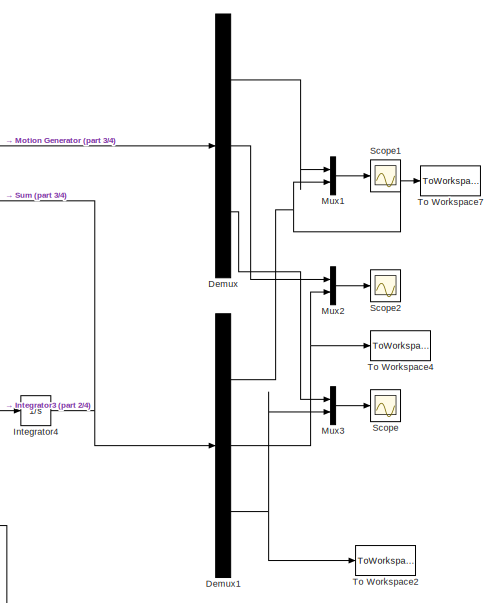
[diagram: root canvas - part 1/4, top right region]
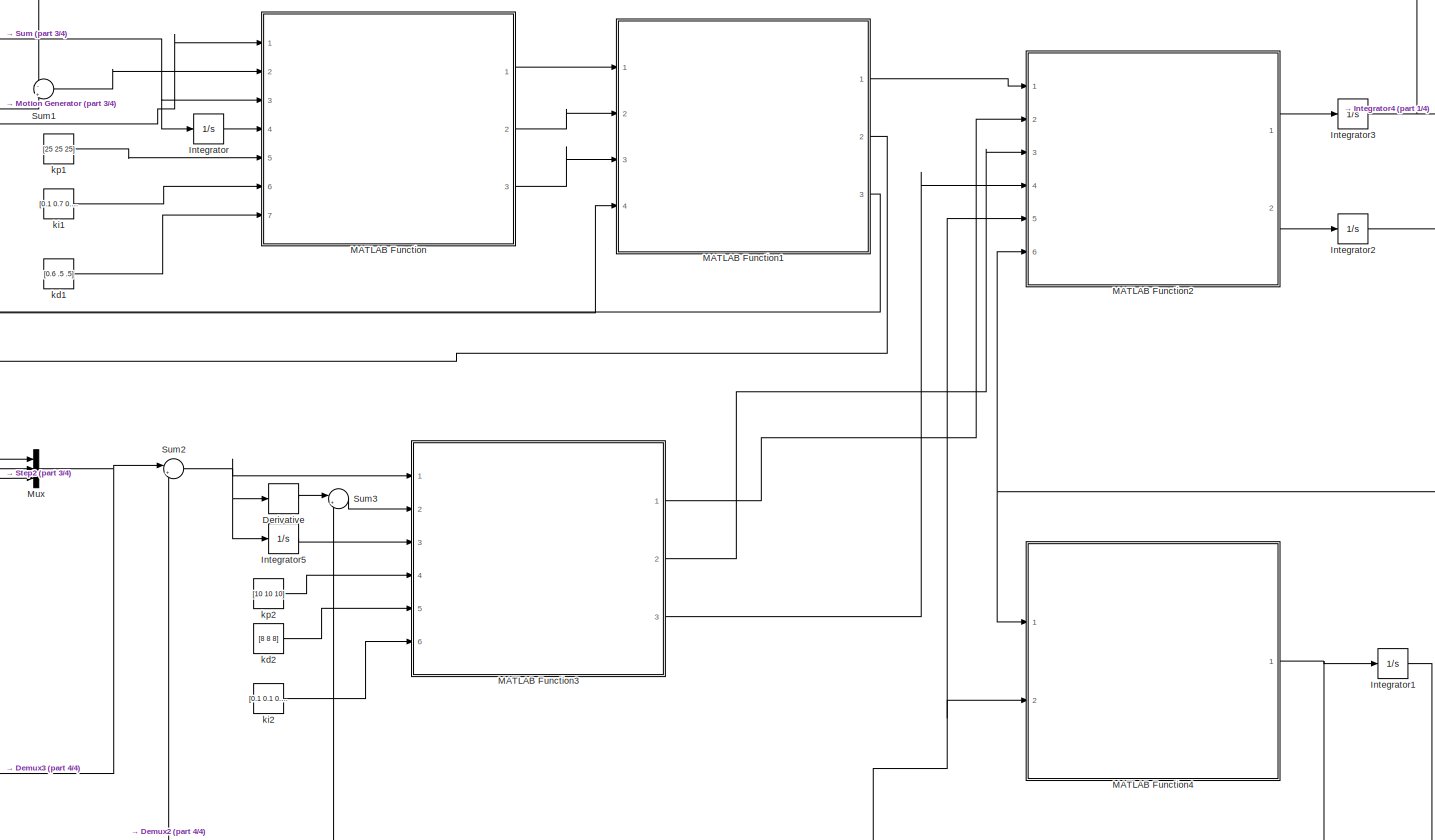
[diagram: root canvas - part 2/4, central region]
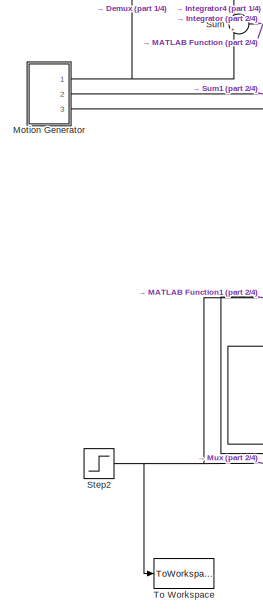
[diagram: root canvas - part 3/4, middle left region]
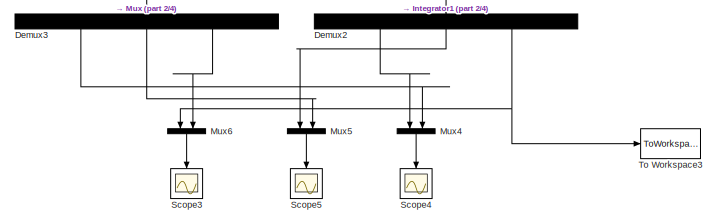
[diagram: root canvas - part 4/4, bottom left region]
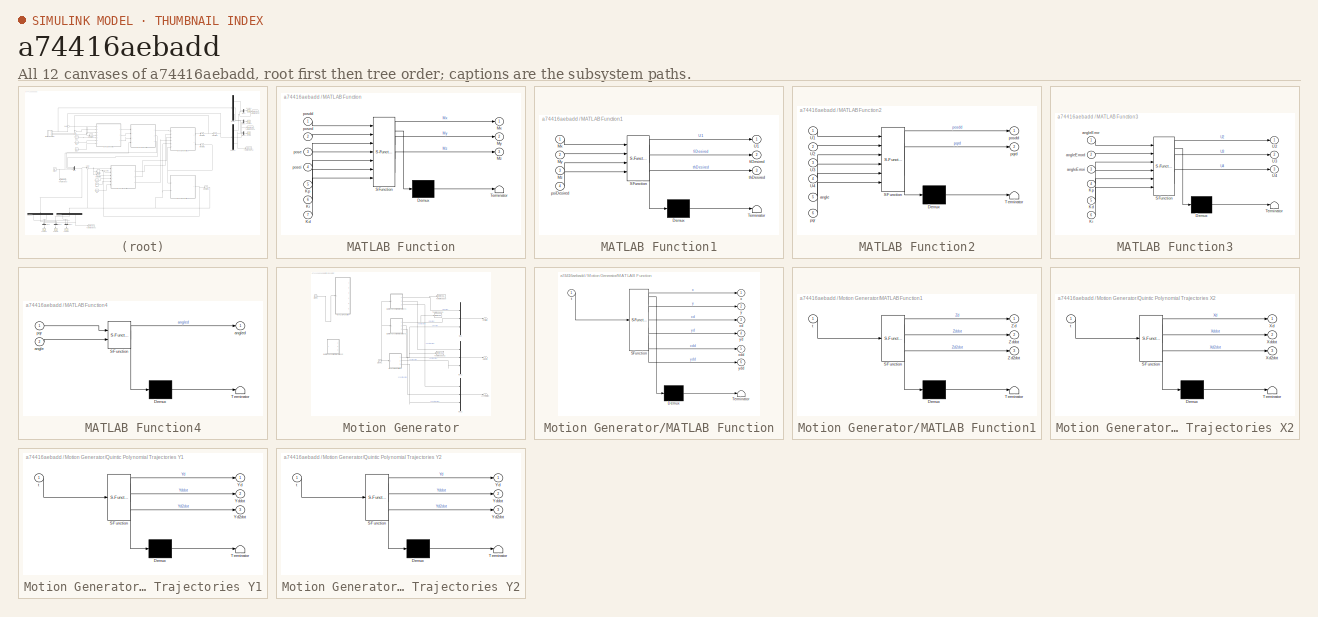
[diagram: thumbnail index - all 12 canvases of the model, root first then tree order]
MODEL slx_a74416aebadd
KIND model
CONFIG AbsTol = auto
CONFIG EnableMultiTasking = off
CONFIG FixedStep = auto
CONFIG MaxStep = auto
CONFIG MinStep = auto
CONFIG RelTol = 1e-3
CONFIG SampleTimeConstraint = Unconstrained
CONFIG SolverName = FixedStepAuto
CONFIG StartTime = 0.0
CONFIG StopTime = 10
BLOCK [Demux] Demux
  Outputs = 3
  Ports = [1, 3]
BLOCK [Demux] Demux1
  Outputs = 3
  Ports = [1, 3]
BLOCK [Demux] Demux2
  NameLocation = left
  Outputs = 3
  Ports = [1, 3]
BLOCK [Demux] Demux3
  NameLocation = left
  Outputs = 3
  Ports = [1, 3]
BLOCK [Derivative] Derivative
BLOCK [Integrator] Integrator
  Ports = [1, 1]
BLOCK [Integrator] Integrator1
  Ports = [1, 1]
BLOCK [Integrator] Integrator2
  Ports = [1, 1]
BLOCK [Integrator] Integrator3
  Ports = [1, 1]
BLOCK [Integrator] Integrator4
  Ports = [1, 1]
BLOCK [Integrator] Integrator5
  Ports = [1, 1]
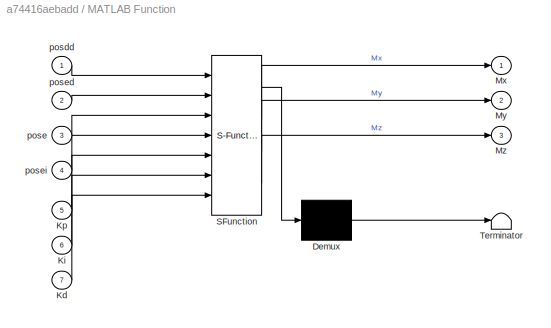
BLOCK [SubSystem] MATLAB Function
  ErrorFcn = Stateflow.Translate.translate
  PermitHierarchicalResolution = ExplicitOnly
  Ports = [7, 3]
  RequestExecContextInheritance = off
  SFBlockType = MATLAB Function
  TreatAsAtomicUnit = on
BLOCK [Demux] MATLAB Function/ Demux 
  Outputs = 1
  Ports = [1, 1]
BLOCK [S-Function] MATLAB Function/ SFunction 
  EnableBusSupport = on
  FunctionName = sf_sfun
  PortCounts = [7 4]
  Ports = [7, 4]
  SFcnIsStateOwnerBlock = off
  SFunctionDeploymentMode = off
  Tag = Stateflow S-Function 2
BLOCK [Terminator] MATLAB Function/ Terminator 
BLOCK [Inport] MATLAB Function/Kd
  Port = 7
BLOCK [Inport] MATLAB Function/Ki
  Port = 6
BLOCK [Inport] MATLAB Function/Kp
  Port = 5
BLOCK [Outport] MATLAB Function/Mx
  VectorParamsAs1DForOutWhenUnconnected = off
BLOCK [Outport] MATLAB Function/My
  Port = 2
  VectorParamsAs1DForOutWhenUnconnected = off
BLOCK [Outport] MATLAB Function/Mz
  Port = 3
  VectorParamsAs1DForOutWhenUnconnected = off
BLOCK [Inport] MATLAB Function/posdd
BLOCK [Inport] MATLAB Function/pose
  Port = 3
BLOCK [Inport] MATLAB Function/posed
  Port = 2
BLOCK [Inport] MATLAB Function/posei
  Port = 4
BLOCK [SubSystem] MATLAB Function1
  ErrorFcn = Stateflow.Translate.translate
  PermitHierarchicalResolution = ExplicitOnly
  Ports = [4, 3]
  RequestExecContextInheritance = off
  SFBlockType = MATLAB Function
  TreatAsAtomicUnit = on
BLOCK [Demux] MATLAB Function1/ Demux 
  Outputs = 1
  Ports = [1, 1]
BLOCK [S-Function] MATLAB Function1/ SFunction 
  EnableBusSupport = on
  FunctionName = sf_sfun
  PortCounts = [4 4]
  Ports = [4, 4]
  SFcnIsStateOwnerBlock = off
  SFunctionDeploymentMode = off
  Tag = Stateflow S-Function 3
BLOCK [Terminator] MATLAB Function1/ Terminator 
BLOCK [Inport] MATLAB Function1/Mx
BLOCK [Inport] MATLAB Function1/My
  Port = 2
BLOCK [Inport] MATLAB Function1/Mz
  Port = 3
BLOCK [Outport] MATLAB Function1/U1
  VectorParamsAs1DForOutWhenUnconnected = off
BLOCK [Outport] MATLAB Function1/fiDesired
  Port = 2
  VectorParamsAs1DForOutWhenUnconnected = off
BLOCK [Inport] MATLAB Function1/psiDesired
  Port = 4
BLOCK [Outport] MATLAB Function1/thDesired
  Port = 3
  VectorParamsAs1DForOutWhenUnconnected = off
BLOCK [SubSystem] MATLAB Function2
  ErrorFcn = Stateflow.Translate.translate
  PermitHierarchicalResolution = ExplicitOnly
  Ports = [6, 2]
  RequestExecContextInheritance = off
  SFBlockType = MATLAB Function
  TreatAsAtomicUnit = on
BLOCK [Demux] MATLAB Function2/ Demux 
  Outputs = 1
  Ports = [1, 1]
BLOCK [S-Function] MATLAB Function2/ SFunction 
  EnableBusSupport = on
  FunctionName = sf_sfun
  PortCounts = [6 3]
  Ports = [6, 3]
  SFcnIsStateOwnerBlock = off
  SFunctionDeploymentMode = off
  Tag = Stateflow S-Function 4
BLOCK [Terminator] MATLAB Function2/ Terminator 
BLOCK [Inport] MATLAB Function2/U1
BLOCK [Inport] MATLAB Function2/U2
  Port = 2
BLOCK [Inport] MATLAB Function2/U3
  Port = 3
BLOCK [Inport] MATLAB Function2/U4
  Port = 4
BLOCK [Inport] MATLAB Function2/angle
  Port = 5
BLOCK [Outport] MATLAB Function2/posdd
  VectorParamsAs1DForOutWhenUnconnected = off
BLOCK [Inport] MATLAB Function2/pqr
  Port = 6
BLOCK [Outport] MATLAB Function2/pqrd
  Port = 2
  VectorParamsAs1DForOutWhenUnconnected = off
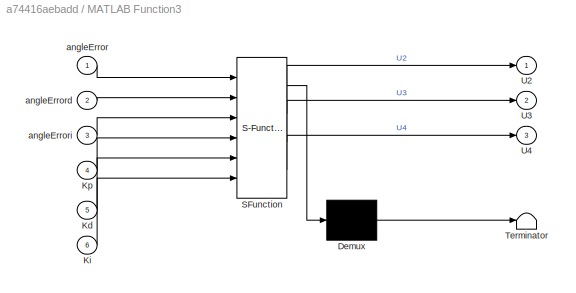
BLOCK [SubSystem] MATLAB Function3
  ErrorFcn = Stateflow.Translate.translate
  PermitHierarchicalResolution = ExplicitOnly
  Ports = [6, 3]
  RequestExecContextInheritance = off
  SFBlockType = MATLAB Function
  TreatAsAtomicUnit = on
BLOCK [Demux] MATLAB Function3/ Demux 
  Outputs = 1
  Ports = [1, 1]
BLOCK [S-Function] MATLAB Function3/ SFunction 
  EnableBusSupport = on
  FunctionName = sf_sfun
  PortCounts = [6 4]
  Ports = [6, 4]
  SFcnIsStateOwnerBlock = off
  SFunctionDeploymentMode = off
  Tag = Stateflow S-Function 5
BLOCK [Terminator] MATLAB Function3/ Terminator 
BLOCK [Inport] MATLAB Function3/Kd
  Port = 5
BLOCK [Inport] MATLAB Function3/Ki
  Port = 6
BLOCK [Inport] MATLAB Function3/Kp
  Port = 4
BLOCK [Outport] MATLAB Function3/U2
  VectorParamsAs1DForOutWhenUnconnected = off
BLOCK [Outport] MATLAB Function3/U3
  Port = 2
  VectorParamsAs1DForOutWhenUnconnected = off
BLOCK [Outport] MATLAB Function3/U4
  Port = 3
  VectorParamsAs1DForOutWhenUnconnected = off
BLOCK [Inport] MATLAB Function3/angleError
BLOCK [Inport] MATLAB Function3/angleErrord
  Port = 2
BLOCK [Inport] MATLAB Function3/angleErrori
  Port = 3
BLOCK [SubSystem] MATLAB Function4
  ErrorFcn = Stateflow.Translate.translate
  PermitHierarchicalResolution = ExplicitOnly
  Ports = [2, 1]
  RequestExecContextInheritance = off
  SFBlockType = MATLAB Function
  TreatAsAtomicUnit = on
BLOCK [Demux] MATLAB Function4/ Demux 
  Outputs = 1
  Ports = [1, 1]
BLOCK [S-Function] MATLAB Function4/ SFunction 
  EnableBusSupport = on
  FunctionName = sf_sfun
  PortCounts = [2 2]
  Ports = [2, 2]
  SFcnIsStateOwnerBlock = off
  SFunctionDeploymentMode = off
  Tag = Stateflow S-Function 6
BLOCK [Terminator] MATLAB Function4/ Terminator 
BLOCK [Inport] MATLAB Function4/angle
  Port = 2
BLOCK [Outport] MATLAB Function4/angled
  VectorParamsAs1DForOutWhenUnconnected = off
BLOCK [Inport] MATLAB Function4/pqr
BLOCK [SubSystem] Motion Generator
  Ports = [0, 3]
  RequestExecContextInheritance = off
BLOCK [Outport] Motion Generator/Acceleration
  Port = 3
  VectorParamsAs1DForOutWhenUnconnected = off
BLOCK [Clock] Motion Generator/Clock
BLOCK [Clock] Motion Generator/Clock1
BLOCK [SubSystem] Motion Generator/MATLAB Function
  Commented = on
  ErrorFcn = Stateflow.Translate.translate
  PermitHierarchicalResolution = ExplicitOnly
  Ports = [1, 6]
  RequestExecContextInheritance = off
  SFBlockType = MATLAB Function
  TreatAsAtomicUnit = on
BLOCK [Demux] Motion Generator/MATLAB Function/ Demux 
  Outputs = 1
  Ports = [1, 1]
BLOCK [S-Function] Motion Generator/MATLAB Function/ SFunction 
  EnableBusSupport = on
  FunctionName = sf_sfun
  PortCounts = [1 7]
  Ports = [1, 7]
  SFcnIsStateOwnerBlock = off
  SFunctionDeploymentMode = off
  Tag = Stateflow S-Function 1
BLOCK [Terminator] Motion Generator/MATLAB Function/ Terminator 
BLOCK [Inport] Motion Generator/MATLAB Function/t
BLOCK [Outport] Motion Generator/MATLAB Function/x
  VectorParamsAs1DForOutWhenUnconnected = off
BLOCK [Outport] Motion Generator/MATLAB Function/xd
  Port = 3
  VectorParamsAs1DForOutWhenUnconnected = off
BLOCK [Outport] Motion Generator/MATLAB Function/xdd
  Port = 5
  VectorParamsAs1DForOutWhenUnconnected = off
BLOCK [Outport] Motion Generator/MATLAB Function/y
  Port = 2
  VectorParamsAs1DForOutWhenUnconnected = off
BLOCK [Outport] Motion Generator/MATLAB Function/yd
  Port = 4
  VectorParamsAs1DForOutWhenUnconnected = off
BLOCK [Outport] Motion Generator/MATLAB Function/ydd
  Port = 6
  VectorParamsAs1DForOutWhenUnconnected = off
BLOCK [SubSystem] Motion Generator/MATLAB Function1
  ErrorFcn = Stateflow.Translate.translate
  PermitHierarchicalResolution = ExplicitOnly
  Ports = [1, 3]
  RequestExecContextInheritance = off
  SFBlockType = MATLAB Function
  TreatAsAtomicUnit = on
BLOCK [Demux] Motion Generator/MATLAB Function1/ Demux 
  Outputs = 1
  Ports = [1, 1]
BLOCK [S-Function] Motion Generator/MATLAB Function1/ SFunction 
  EnableBusSupport = on
  FunctionName = sf_sfun
  PortCounts = [1 4]
  Ports = [1, 4]
  SFcnIsStateOwnerBlock = off
  SFunctionDeploymentMode = off
  Tag = Stateflow S-Function 7
BLOCK [Terminator] Motion Generator/MATLAB Function1/ Terminator 
BLOCK [Outport] Motion Generator/MATLAB Function1/Zd
  VectorParamsAs1DForOutWhenUnconnected = off
BLOCK [Outport] Motion Generator/MATLAB Function1/Zd2dot
  Port = 3
  VectorParamsAs1DForOutWhenUnconnected = off
BLOCK [Outport] Motion Generator/MATLAB Function1/Zddot
  Port = 2
  VectorParamsAs1DForOutWhenUnconnected = off
BLOCK [Inport] Motion Generator/MATLAB Function1/t
BLOCK [Mux] Motion Generator/Mux
  DisplayOption = bar
  Inputs = 3
  Ports = [3, 1]
BLOCK [Mux] Motion Generator/Mux1
  DisplayOption = bar
  Inputs = 3
  Ports = [3, 1]
BLOCK [Mux] Motion Generator/Mux2
  DisplayOption = bar
  Inputs = 3
  Ports = [3, 1]
BLOCK [Outport] Motion Generator/Position
  VectorParamsAs1DForOutWhenUnconnected = off
BLOCK [SubSystem] Motion Generator/Quintic Polynomial Trajectories X2
  Commented = on
  ErrorFcn = Stateflow.Translate.translate
  PermitHierarchicalResolution = ExplicitOnly
  Ports = [1, 3]
  RequestExecContextInheritance = off
  SFBlockType = MATLAB Function
  TreatAsAtomicUnit = on
BLOCK [Demux] Motion Generator/Quintic Polynomial Trajectories X2/ Demux 
  Outputs = 1
  Ports = [1, 1]
BLOCK [S-Function] Motion Generator/Quintic Polynomial Trajectories X2/ SFunction 
  EnableBusSupport = on
  FunctionName = sf_sfun
  PortCounts = [1 4]
  Ports = [1, 4]
  SFcnIsStateOwnerBlock = off
  SFunctionDeploymentMode = off
  Tag = Stateflow S-Function 10
BLOCK [Terminator] Motion Generator/Quintic Polynomial Trajectories X2/ Terminator 
BLOCK [Outport] Motion Generator/Quintic Polynomial Trajectories X2/Xd
  VectorParamsAs1DForOutWhenUnconnected = off
BLOCK [Outport] Motion Generator/Quintic Polynomial Trajectories X2/Xd2dot
  Port = 3
  VectorParamsAs1DForOutWhenUnconnected = off
BLOCK [Outport] Motion Generator/Quintic Polynomial Trajectories X2/Xddot
  Port = 2
  VectorParamsAs1DForOutWhenUnconnected = off
BLOCK [Inport] Motion Generator/Quintic Polynomial Trajectories X2/t
BLOCK [SubSystem] Motion Generator/Quintic Polynomial Trajectories Y1
  ErrorFcn = Stateflow.Translate.translate
  PermitHierarchicalResolution = ExplicitOnly
  Ports = [1, 3]
  RequestExecContextInheritance = off
  SFBlockType = MATLAB Function
  TreatAsAtomicUnit = on
BLOCK [Demux] Motion Generator/Quintic Polynomial Trajectories Y1/ Demux 
  Outputs = 1
  Ports = [1, 1]
BLOCK [S-Function] Motion Generator/Quintic Polynomial Trajectories Y1/ SFunction 
  EnableBusSupport = on
  FunctionName = sf_sfun
  PortCounts = [1 4]
  Ports = [1, 4]
  SFcnIsStateOwnerBlock = off
  SFunctionDeploymentMode = off
  Tag = Stateflow S-Function 9
BLOCK [Terminator] Motion Generator/Quintic Polynomial Trajectories Y1/ Terminator 
BLOCK [Outport] Motion Generator/Quintic Polynomial Trajectories Y1/Yd
  VectorParamsAs1DForOutWhenUnconnected = off
BLOCK [Outport] Motion Generator/Quintic Polynomial Trajectories Y1/Yd2dot
  Port = 3
  VectorParamsAs1DForOutWhenUnconnected = off
BLOCK [Outport] Motion Generator/Quintic Polynomial Trajectories Y1/Yddot
  Port = 2
  VectorParamsAs1DForOutWhenUnconnected = off
BLOCK [Inport] Motion Generator/Quintic Polynomial Trajectories Y1/t
BLOCK [SubSystem] Motion Generator/Quintic Polynomial Trajectories Y2
  ErrorFcn = Stateflow.Translate.translate
  PermitHierarchicalResolution = ExplicitOnly
  Ports = [1, 3]
  RequestExecContextInheritance = off
  SFBlockType = MATLAB Function
  TreatAsAtomicUnit = on
BLOCK [Demux] Motion Generator/Quintic Polynomial Trajectories Y2/ Demux 
  Outputs = 1
  Ports = [1, 1]
BLOCK [S-Function] Motion Generator/Quintic Polynomial Trajectories Y2/ SFunction 
  EnableBusSupport = on
  FunctionName = sf_sfun
  PortCounts = [1 4]
  Ports = [1, 4]
  SFcnIsStateOwnerBlock = off
  SFunctionDeploymentMode = off
  Tag = Stateflow S-Function 8
BLOCK [Terminator] Motion Generator/Quintic Polynomial Trajectories Y2/ Terminator 
BLOCK [Outport] Motion Generator/Quintic Polynomial Trajectories Y2/Yd
  VectorParamsAs1DForOutWhenUnconnected = off
BLOCK [Outport] Motion Generator/Quintic Polynomial Trajectories Y2/Yd2dot
  Port = 3
  VectorParamsAs1DForOutWhenUnconnected = off
BLOCK [Outport] Motion Generator/Quintic Polynomial Trajectories Y2/Yddot
  Port = 2
  VectorParamsAs1DForOutWhenUnconnected = off
BLOCK [Inport] Motion Generator/Quintic Polynomial Trajectories Y2/t
BLOCK [ToWorkspace] Motion Generator/To Workspace
  FixptAsFi = on
  MaxDataPoints = inf
  Ports = [1]
  SampleTime = -1
  SaveFormat = Timeseries
  VariableName = xd
BLOCK [ToWorkspace] Motion Generator/To Workspace1
  FixptAsFi = on
  MaxDataPoints = inf
  Ports = [1]
  SampleTime = -1
  SaveFormat = Timeseries
  VariableName = yd
BLOCK [ToWorkspace] Motion Generator/To Workspace2
  FixptAsFi = on
  MaxDataPoints = inf
  Ports = [1]
  SampleTime = -1
  SaveFormat = Timeseries
  VariableName = zd
BLOCK [Outport] Motion Generator/Velocity
  Port = 2
  VectorParamsAs1DForOutWhenUnconnected = off
BLOCK [Mux] Mux
  DisplayOption = bar
  Inputs = 3
  Ports = [3, 1]
BLOCK [Mux] Mux1
  DisplayOption = bar
  Inputs = 2
  Ports = [2, 1]
BLOCK [Mux] Mux2
  DisplayOption = bar
  Inputs = 2
  Ports = [2, 1]
BLOCK [Mux] Mux3
  DisplayOption = bar
  Inputs = 2
  Ports = [2, 1]
BLOCK [Mux] Mux4
  DisplayOption = bar
  Inputs = 2
  NameLocation = left
  Ports = [2, 1]
BLOCK [Mux] Mux5
  DisplayOption = bar
  Inputs = 2
  NameLocation = left
  Ports = [2, 1]
BLOCK [Mux] Mux6
  DisplayOption = bar
  Inputs = 2
  NameLocation = left
  Ports = [2, 1]
BLOCK [Scope] Scope
  Floating = off
  NumInputPorts = 1
  Ports = [1]
  ScopeSpecificationString = Simulink.scopes.TimeScopeBlockCfg('CurrentConfiguration', extmgr.ConfigurationSet(extmgr.Configuration('Core','General UI',true),extmgr.Configuration('Core','Source UI',true),extmgr.Configuration('Sources','WiredSimulink',true),extmgr.Configuration('Visuals','Time Domain',true,'SerializedDisplays',{struct('MinYLimReal','-5.03474','MaxYLimReal','45.31269','YLabelReal','','MinYLimMag','0.00000','Max...<+1361ch>
BLOCK [Scope] Scope1
  Floating = off
  NumInputPorts = 1
  Ports = [1]
  ScopeSpecificationString = Simulink.scopes.TimeScopeBlockCfg('CurrentConfiguration', extmgr.ConfigurationSet(extmgr.Configuration('Core','General UI',true),extmgr.Configuration('Core','Source UI',true),extmgr.Configuration('Sources','WiredSimulink',true,'DataLoggingVariableName','ScopeData1'),extmgr.Configuration('Visuals','Time Domain',true,'SerializedDisplays',{struct('MinYLimReal','-1.2321','MaxYLimReal','11.08891','YLab...<+1410ch>
BLOCK [Scope] Scope2
  Floating = off
  NumInputPorts = 1
  Ports = [1]
  ScopeSpecificationString = Simulink.scopes.TimeScopeBlockCfg('CurrentConfiguration', extmgr.ConfigurationSet(extmgr.Configuration('Core','General UI',true),extmgr.Configuration('Core','Source UI',true),extmgr.Configuration('Sources','WiredSimulink',true,'DataLoggingVariableName','ScopeData2'),extmgr.Configuration('Visuals','Time Domain',true,'SerializedDisplays',{struct('MinYLimReal','-1.2321','MaxYLimReal','11.08891','YLab...<+1434ch>
BLOCK [Scope] Scope3
  Floating = off
  NameLocation = left
  NumInputPorts = 1
  Ports = [1]
  ScopeSpecificationString = Simulink.scopes.TimeScopeBlockCfg('CurrentConfiguration', extmgr.ConfigurationSet(extmgr.Configuration('Core','General UI',true),extmgr.Configuration('Core','Source UI',true),extmgr.Configuration('Sources','WiredSimulink',true,'DataLoggingVariableName','ScopeData3'),extmgr.Configuration('Visuals','Time Domain',true,'SerializedDisplays',{struct('MinYLimReal','-0.07941','MaxYLimReal','0.71471','YLab...<+1378ch>
BLOCK [Scope] Scope4
  Floating = off
  NameLocation = left
  NumInputPorts = 1
  Ports = [1]
  ScopeSpecificationString = Simulink.scopes.TimeScopeBlockCfg('CurrentConfiguration', extmgr.ConfigurationSet(extmgr.Configuration('Core','General UI',true),extmgr.Configuration('Core','Source UI',true),extmgr.Configuration('Sources','WiredSimulink',true,'DataLoggingVariableName','ScopeData4'),extmgr.Configuration('Visuals','Time Domain',true,'SerializedDisplays',{struct('MinYLimReal','-1.15582','MaxYLimReal','0.90085','YLab...<+1408ch>
BLOCK [Scope] Scope5
  Floating = off
  NameLocation = left
  NumInputPorts = 1
  Ports = [1]
  ScopeSpecificationString = Simulink.scopes.TimeScopeBlockCfg('CurrentConfiguration', extmgr.ConfigurationSet(extmgr.Configuration('Core','General UI',true),extmgr.Configuration('Core','Source UI',true),extmgr.Configuration('Sources','WiredSimulink',true,'DataLoggingVariableName','ScopeData5'),extmgr.Configuration('Visuals','Time Domain',true,'SerializedDisplays',{struct('MinYLimReal','-1.72954','MaxYLimReal','1.84047','YLab...<+1397ch>
BLOCK [Step] Step2
  After = pi/6
  SampleTime = 0
BLOCK [Sum] Sum
  Inputs = -|+
  Ports = [2, 1]
BLOCK [Sum] Sum1
  Inputs = -|+
  Ports = [2, 1]
BLOCK [Sum] Sum2
  Inputs = |+-
  Ports = [2, 1]
BLOCK [Sum] Sum3
  Inputs = |+-
  Ports = [2, 1]
BLOCK [ToWorkspace] To Workspace
  FixptAsFi = on
  MaxDataPoints = inf
  Ports = [1]
  SampleTime = -1
  SaveFormat = Timeseries
  VariableName = psid
BLOCK [ToWorkspace] To Workspace2
  FixptAsFi = on
  MaxDataPoints = inf
  Ports = [1]
  SampleTime = -1
  SaveFormat = Timeseries
  VariableName = z
BLOCK [ToWorkspace] To Workspace3
  FixptAsFi = on
  MaxDataPoints = inf
  Ports = [1]
  SampleTime = -1
  SaveFormat = Timeseries
  VariableName = psi
BLOCK [ToWorkspace] To Workspace4
  FixptAsFi = on
  MaxDataPoints = inf
  Ports = [1]
  SampleTime = -1
  SaveFormat = Timeseries
  VariableName = y
BLOCK [ToWorkspace] To Workspace7
  FixptAsFi = on
  MaxDataPoints = inf
  Ports = [1]
  SampleTime = -1
  SaveFormat = Timeseries
  VariableName = x
BLOCK [Constant] kd1
  Value = [0.6 .5 .5]
BLOCK [Constant] kd2
  Value = [8 8 8]
BLOCK [Constant] ki1
  Value = [0.1 0.7 0.6]
BLOCK [Constant] ki2
  Value = [0.1 0.1 0.1]
BLOCK [Constant] kp1
  Value = [25 25 25]
BLOCK [Constant] kp2
  Value = [10 10 10]
NET Demux1:1 -> Mux1:2, To Workspace7:1
NET Demux1:2 -> Mux2:2, To Workspace4:1
NET Demux1:3 -> Mux3:2, To Workspace2:1
LINE Demux2:1 -> Mux4:1
LINE Demux2:2 -> Mux5:1
NET Demux2:3 -> Mux6:1, To Workspace3:1
LINE Demux3:1 -> Mux4:2
LINE Demux3:2 -> Mux5:2
LINE Demux3:3 -> Mux6:2
LINE Demux:1 -> Mux1:1
LINE Demux:2 -> Mux2:1
LINE Demux:3 -> Mux3:1
LINE Derivative:1 -> Sum3:1
NET Integrator1:1 -> Demux2:1, MATLAB Function2:5, MATLAB Function4:2, Sum2:2
NET Integrator2:1 -> MATLAB Function2:6, MATLAB Function4:1
NET Integrator3:1 -> Integrator4:1, Sum1:1
NET Integrator4:1 -> Demux1:1, Sum:1
LINE Integrator5:1 -> MATLAB Function3:3
LINE Integrator:1 -> MATLAB Function:4
LINE MATLAB Function1:1 -> MATLAB Function2:1
LINE MATLAB Function1:2 -> Mux:1
LINE MATLAB Function1:3 -> Mux:2
LINE MATLAB Function2:1 -> Integrator3:1
LINE MATLAB Function2:2 -> Integrator2:1
LINE MATLAB Function3:1 -> MATLAB Function2:2
LINE MATLAB Function3:2 -> MATLAB Function2:3
LINE MATLAB Function3:3 -> MATLAB Function2:4
NET MATLAB Function4:1 -> Integrator1:1, Sum3:2
LINE MATLAB Function:1 -> MATLAB Function1:1
LINE MATLAB Function:2 -> MATLAB Function1:2
LINE MATLAB Function:3 -> MATLAB Function1:3
NET Motion Generator/Clock1:1 -> Motion Generator/MATLAB Function1:1, Motion Generator/Quintic Polynomial Trajectories Y1:1, Motion Generator/Quintic Polynomial Trajectories Y2:1
LINE Motion Generator/Clock:1 -> Motion Generator/MATLAB Function:1
NET Motion Generator/MATLAB Function1:1 -> Motion Generator/Mux:3, Motion Generator/To Workspace2:1
LINE Motion Generator/MATLAB Function1:2 -> Motion Generator/Mux1:3
LINE Motion Generator/MATLAB Function1:3 -> Motion Generator/Mux2:3
LINE Motion Generator/Mux1:1 -> Motion Generator/Velocity:1
LINE Motion Generator/Mux2:1 -> Motion Generator/Acceleration:1
LINE Motion Generator/Mux:1 -> Motion Generator/Position:1
NET Motion Generator/Quintic Polynomial Trajectories Y1:1 -> Motion Generator/Mux:1, Motion Generator/To Workspace:1
LINE Motion Generator/Quintic Polynomial Trajectories Y1:2 -> Motion Generator/Mux1:1
LINE Motion Generator/Quintic Polynomial Trajectories Y1:3 -> Motion Generator/Mux2:1
NET Motion Generator/Quintic Polynomial Trajectories Y2:1 -> Motion Generator/Mux:2, Motion Generator/To Workspace1:1
LINE Motion Generator/Quintic Polynomial Trajectories Y2:2 -> Motion Generator/Mux1:2
LINE Motion Generator/Quintic Polynomial Trajectories Y2:3 -> Motion Generator/Mux2:2
NET Motion Generator:1 -> Demux:1, Sum:2
LINE Motion Generator:2 -> Sum1:2
LINE Motion Generator:3 -> MATLAB Function:1
LINE Mux1:1 -> Scope1:1
LINE Mux2:1 -> Scope2:1
LINE Mux3:1 -> Scope:1
LINE Mux4:1 -> Scope4:1
LINE Mux5:1 -> Scope5:1
LINE Mux6:1 -> Scope3:1
NET Mux:1 -> Demux3:1, Sum2:1
NET Step2:1 -> MATLAB Function1:4, Mux:3, To Workspace:1
LINE Sum1:1 -> MATLAB Function:2
NET Sum2:1 -> Derivative:1, Integrator5:1, MATLAB Function3:1
LINE Sum3:1 -> MATLAB Function3:2
NET Sum:1 -> Integrator:1, MATLAB Function:3
LINE kd1:1 -> MATLAB Function:7
LINE kd2:1 -> MATLAB Function3:5
LINE ki1:1 -> MATLAB Function:6
LINE ki2:1 -> MATLAB Function3:6
LINE kp1:1 -> MATLAB Function:5
LINE kp2:1 -> MATLAB Function3:4
note: NET lines group one-source signal fan-out (src -> all destinations, sorted); 1:1 wires keep LINE
CHART Motion Generator/Quintic Polynomial Trajectories Y2 states=1 transitions=1
  STATE_LABEL 'eML_blk_kernel()'
  STATE_LABEL 'SCRIPT:\nfunction [Yd, Yddot, Yd2dot] = Y_function(t)\n\nt0 = 5;\ntf = 10;\n \ny0 = 0; \nyf = 10;\n\nvy0 = 0;\nvyf = 0;\n\nay0 = 0;\nayf = 0;\n\n%Ax=b\n\na = [1 t0 t0^2 t0^3 t0^4 t0^5];\nb = [0 1  2*t0 3*t0^2 4*t0^3 5*t0^4];\nc = [0 0  2 6*t0 12*t0^2 20*t0^3];\nd = [1 tf tf^2 tf^3 tf^4 tf^5];\ne = [0 1 2*tf 3*tf^2 4*tf^3 5*tf^4];\nf = [0 0 2 6*tf 12*tf^2 20*tf^3];\n\nA_matrix = [ a; b; c; d; e; f ]\n\nb_vector = [ y0; vy0;...<+505ch>'
CHART Motion Generator/Quintic Polynomial Trajectories Y1 states=1 transitions=1
  STATE_LABEL 'eML_blk_kernel()'
  STATE_LABEL 'SCRIPT:\nfunction [Yd, Yddot, Yd2dot] = Y_function(t)\n\nt0 = 5;\ntf = 10;\n \ny0 = 0; \nyf = 10;\n\nvy0 = 0;\nvyf = 0;\n\nay0 = 0;\nayf = 0;\n\n%Ax=b\n\na = [1 t0 t0^2 t0^3 t0^4 t0^5];\nb = [0 1  2*t0 3*t0^2 4*t0^3 5*t0^4];\nc = [0 0  2 6*t0 12*t0^2 20*t0^3];\nd = [1 tf tf^2 tf^3 tf^4 tf^5];\ne = [0 1 2*tf 3*tf^2 4*tf^3 5*tf^4];\nf = [0 0 2 6*tf 12*tf^2 20*tf^3];\n\nA_matrix = [ a; b; c; d; e; f ]\n\nb_vector = [ y0; vy0;...<+505ch>'
CHART Motion Generator/Quintic Polynomial Trajectories X2 states=1 transitions=1
  STATE_LABEL 'eML_blk_kernel()'
  STATE_LABEL 'SCRIPT:\nfunction [Xd, Xddot, Xd2dot]  = X_function(t)\n\nt0 = 0;\ntf = 10;\n \nx0 = 0;\nxf = 0;\n\nvx0 = 0;\nvxf = 0;\n\nax0 = 0;\naxf = 0;\n\n%Ax=b\n\na = [1 t0 t0^2 t0^3 t0^4 t0^5];\nb = [0 1  2*t0 3*t0^2 4*t0^3 5*t0^4];\nc = [0 0  2 6*t0 12*t0^2 20*t0^3];\nd = [1 tf tf^2 tf^3 tf^4 tf^5];\ne = [0 1 2*tf 3*tf^2 4*tf^3 5*tf^4];\nf = [0 0 2 6*tf 12*tf^2 20*tf^3];\n\nA_matrix = [ a; b; c; d; e; f ]\n\nb_vector = [ x0; vx0; ...<+458ch>'
CHART Motion Generator/MATLAB Function states=1 transitions=1
  STATE_LABEL 'eML_blk_kernel()'
  STATE_LABEL 'SCRIPT:\nfunction [x,y,xd,yd,xdd,ydd] = Source(t)\nx = t;\ny = 0;\n\n\nxd = 1;\nyd = 0;\n\nxdd= 0;\nydd=0;\n\n'
CHART MATLAB Function states=1 transitions=1
  STATE_LABEL 'eML_blk_kernel()'
  STATE_LABEL 'SCRIPT:\nfunction [Mx,My,Mz] = positionControl(posdd,posed,pose,posei,Kp,Ki,Kd)\nMx=posdd(1)+Kp(1)*pose(1)+Kd(1)*posed(1)+Ki(1)*posei(1)\nMy=posdd(2)+Kp(2)*pose(2)+Kd(2)*posed(2)+Ki(2)*posei(2)\nMz=posdd(3)+Kp(3)*pose(3)+Kd(3)*posed(3)+Ki(3)*posei(3)\nend'
CHART MATLAB Function1 states=1 transitions=1
  STATE_LABEL 'eML_blk_kernel()'
  STATE_LABEL 'SCRIPT:\nfunction [U1,fiDesired,thDesired] = virtualControl(Mx,My,Mz,psiDesired)\nIx = 7.5*10^(-3);  % Quadrotor moment of inertia around X axis\nIy = 7.5*10^(-3);  % Quadrotor moment of inertia around Y axis\nIz = 1.3*10^(-2);  % Quadrotor moment of inertia around Z axis\nJr = 6.5*10^(-5);  % Total rotational moment of inertia around the propeller axis\nb = 3.13*10^(-5);  % Thrust factor\nd = 7.5*10^(-7...<+370ch>'
CHART MATLAB Function2 states=1 transitions=1
  STATE_LABEL 'eML_blk_kernel()'
  STATE_LABEL 'SCRIPT:\nfunction [posdd,pqrd] = quadrotorDynamics(U1,U2,U3,U4,angle,pqr)\n% Quadrotor constants\nIx = 7.5*10^(-3);  % Quadrotor moment of inertia around X axis\nIy = 7.5*10^(-3);  % Quadrotor moment of inertia around Y axis\nIz = 1.3*10^(-2);  % Quadrotor moment of inertia around Z axis\nJr = 6.5*10^(-5);  % Total rotational moment of inertia around the propeller axis\nb = 3.13*10^(-5);  % Thrust factor...<+494ch>'
CHART MATLAB Function3 states=1 transitions=1
  STATE_LABEL 'eML_blk_kernel()'
  STATE_LABEL 'SCRIPT:\nfunction [U2,U3,U4] = altitudeControl(angleError,angleErrord,angleErrori,Kp,Kd,Ki)\n\nIx = 7.5*10^(-3);  % Quadrotor moment of inertia around X axis\nIy = 7.5*10^(-3);  % Quadrotor moment of inertia around Y axis\nIz = 1.3*10^(-2);  % Quadrotor moment of inertia around Z axis\nJr = 6.5*10^(-5);  % Total rotational moment of inertia around the propeller axis\nb = 3.13*10^(-5);  % Thrust factor\nd ...<+398ch>'
CHART MATLAB Function4 states=1 transitions=1
  STATE_LABEL 'eML_blk_kernel()'
  STATE_LABEL 'SCRIPT:\nfunction angled  = eulerRate(pqr,angle)\n\nfi=angle(1);\nth=angle(2);\npsi=angle(3);\n\n\nangled=[1 sin(fi)*tan(th) cos(fi)*tan(th);\n        0 cos(fi)          -sin(fi);\n        0 sin(fi)/cos(th) cos(fi)/cos(th)]*pqr;\nend\n'
CHART Motion Generator/MATLAB Function1 states=1 transitions=1
  STATE_LABEL 'eML_blk_kernel()'
  STATE_LABEL 'SCRIPT:\nfunction [Zd, Zddot, Zd2dot] = Z_function(t)\n\n\nt_i = 0;\nt_f = 5;\nt_f1 =15; \n \nz_0 = 0;\nz_f = 20;\nz_f1 = 50;\n\nvz_0 = 0;\nvz_f = 0;\nvz_f1 = 0;\n\naz_0 = 0;\naz_f = 0;\naz_f1 = 0;\n\n%Ax=b\n\nif t>t_f && t<=t_f1\n    t_i=t_f;  z_0=z_f;  vz_0=vz_f;  az_0=az_f;\n    t_f=t_f1; z_f=z_f1; vz_f=vz_f1; az_f=az_f1;\nend\n    \na = [1 t_i t_i^2 t_i^3 t_i^4 t_i^5];\nb = [0 1  2*t_i 3*t_i^2 4*t_i^3 5*t_i^4];\nc = [0 0 ...<+673ch>'
CHART  states=0 transitions=0
CHART  states=0 transitions=0
CHART  states=0 transitions=0
CHART  states=0 transitions=0
CHART  states=0 transitions=0
CHART  states=0 transitions=0
CHART  states=0 transitions=0
CHART  states=0 transitions=0
CHART  states=0 transitions=0
CHART  states=0 transitions=0
